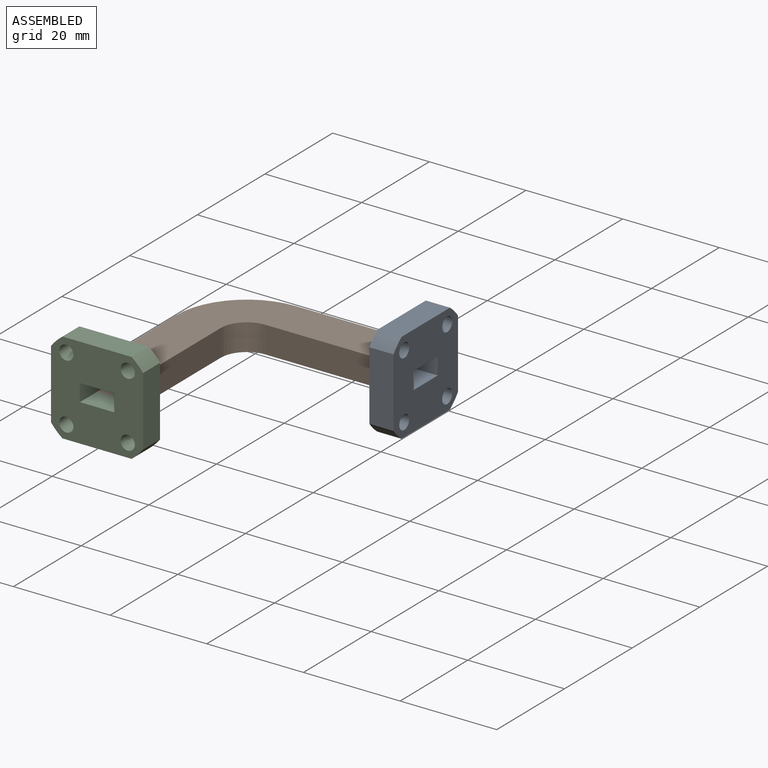
[diagram: assembled view]
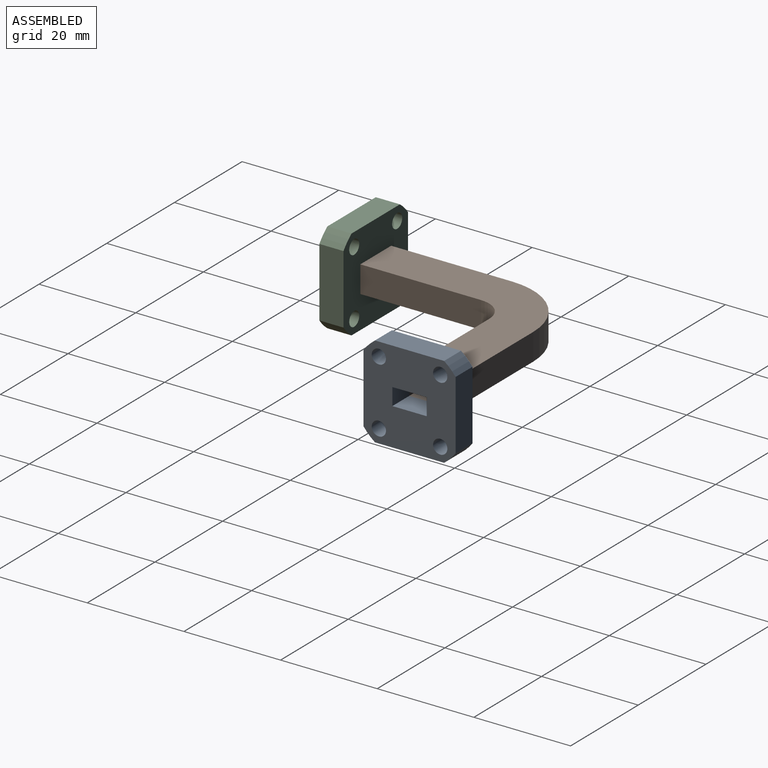
[diagram: assembled view, second angle]
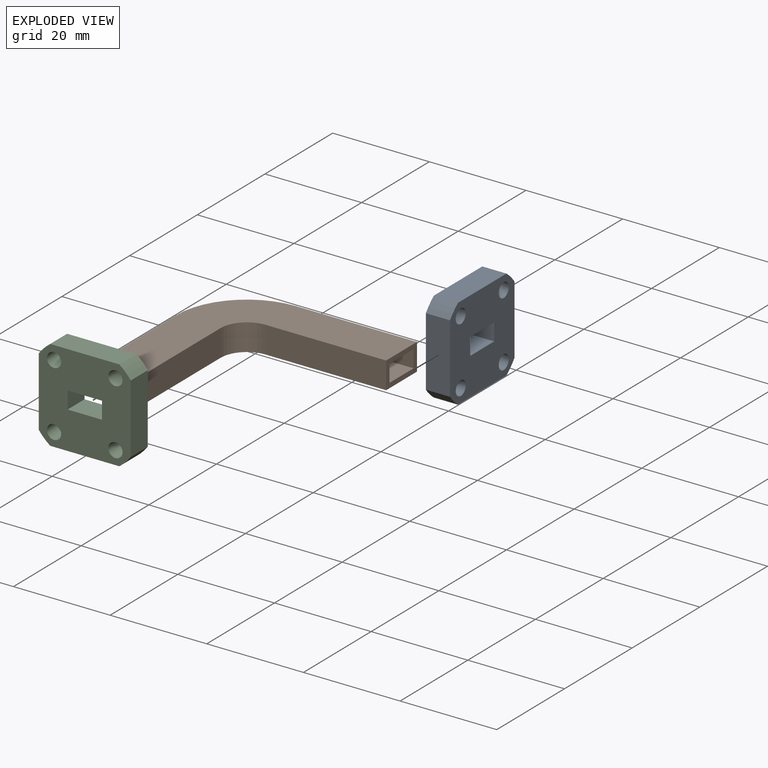
[diagram: exploded view]
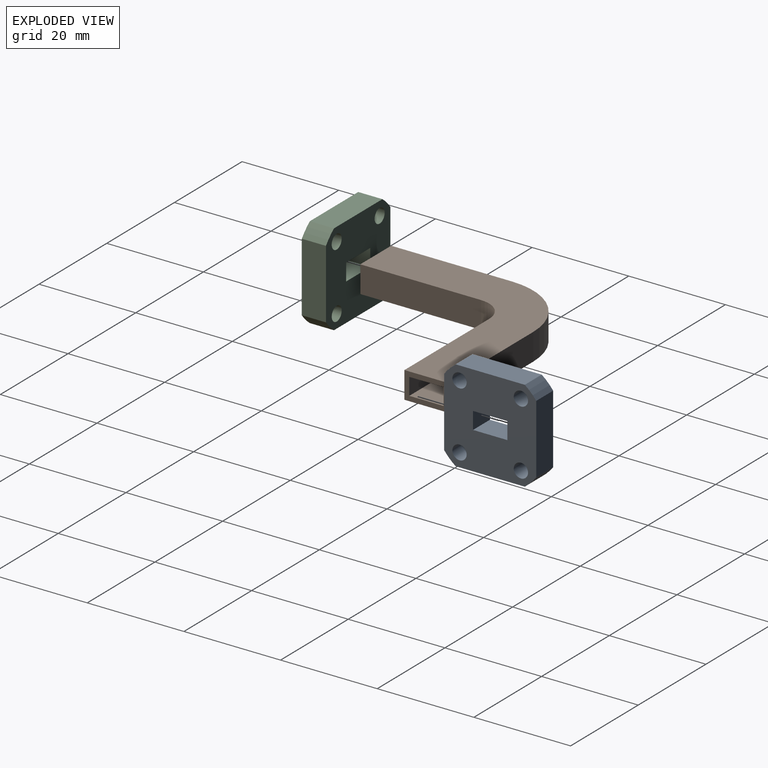
[diagram: exploded view, second angle]
ASSEMBLY  parts=3 mates=6
PART A: 18 faces, bbox 19.1x5x19.1 mm
  f0: plane 14.31x5mm, normal (0,0,-1), area 71.5mm2, adj f1,f15,f16,f17
  f1: cylinder r=11.91mm len=5mm, axis (0,-1,0), area 16.8mm2, adj f0,f2,f16,f17
  f2: plane 14.31x5mm, normal (1,0,0), area 71.5mm2, adj f1,f3,f16,f17
  f3: cylinder r=11.91mm len=5mm, axis (0,-1,0), area 16.8mm2, adj f2,f4,f16,f17
  f4: plane 14.31x5mm, normal (0,0,1), area 71.5mm2, adj f3,f5,f16,f17
  f5: cylinder r=11.91mm len=5mm, axis (0,-1,0), area 16.8mm2, adj f4,f6,f16,f17
  f6: plane 14.31x5mm, normal (-1,0,0), area 71.5mm2, adj f5,f15,f16,f17
  f7: plane 5x3.56mm, normal (-1,0,0), area 17.8mm2, adj f8,f14,f16,f17
  f8: plane 7.11x5mm, normal (0,0,1), area 35.6mm2, adj f7,f9,f16,f17
  f9: plane 5x3.56mm, normal (1,0,0), area 17.8mm2, adj f8,f14,f16,f17
  f10: cylinder r=1.47mm len=5mm, axis (0,-1,0), area 46.3mm2, adj f16,f17
  f11: cylinder r=1.47mm len=5mm, axis (0,-1,0), area 46.3mm2, adj f16,f17
  f12: cylinder r=1.47mm len=5mm, axis (0,-1,0), area 46.3mm2, adj f16,f17
  f13: cylinder r=1.47mm len=5mm, axis (0,-1,0), area 46.3mm2, adj f16,f17
  f14: plane 7.11x5mm, normal (0,0,-1), area 35.6mm2, adj f7,f9,f16,f17
  f15: cylinder r=11.91mm len=5mm, axis (0,-1,0), area 16.8mm2, adj f0,f6,f16,f17
  f16: plane 19.05x19.05mm, normal (0,1,0), area 300.1mm2, adj f0,f1,f2,f3,f4,f5,f6,f7
  f17: plane 19.05x19.05mm, normal (0,-1,0), area 300.1mm2, adj f0,f1,f2,f3,f4,f5,f6,f7
PART B: 18 faces, bbox 39.6x39.6x5.6 mm
  f0: plane 25x3.56mm, normal (1,0,0), area 88.9mm2, adj f2,f5,f7,f8
  f1: plane 25x3.56mm, normal (-1,0,0), area 88.9mm2, adj f3,f5,f7,f8
  f2: cylinder r=13.56mm len=13.56mm, axis (0,0,-1), area 75.7mm2, adj f0,f4,f5,f7
  f3: cylinder r=6.44mm len=6.44mm, axis (0,0,-1), area 36mm2, adj f1,f5,f6,f7
  f4: plane 25x3.56mm, normal (0,-1,0), area 88.9mm2, adj f2,f5,f7,f9
  f5: plane 38.56x38.56mm, normal (0,0,1), area 467.3mm2, adj f0,f1,f2,f3,f4,f6,f8,f9
  f6: plane 25x3.56mm, normal (0,1,0), area 88.9mm2, adj f3,f5,f7,f9
  f7: plane 38.56x38.56mm, normal (0,0,-1), area 467.3mm2, adj f0,f1,f2,f3,f4,f6,f8,f9
  f8: plane 9.11x5.56mm, normal (0,-1,0), area 25.3mm2, adj f0,f1,f5,f7,f10,f11,f12,f13
  f9: plane 9.11x5.56mm, normal (1,0,0), area 25.3mm2, adj f4,f5,f6,f7,f10,f12,f16,f17
  f10: plane 39.56x39.56mm, normal (0,0,1), area 598.7mm2, adj f8,f9,f11,f13,f14,f15,f16,f17
  f11: plane 25x5.56mm, normal (1,0,0), area 138.9mm2, adj f8,f10,f12,f14
  f12: plane 39.56x39.56mm, normal (0,0,-1), area 598.7mm2, adj f8,f9,f11,f13,f14,f15,f16,f17
  f13: plane 25x5.56mm, normal (-1,0,0), area 138.9mm2, adj f8,f10,f12,f15
  f14: cylinder r=5.44mm len=5.56mm, axis (0,0,-1), area 47.5mm2, adj f10,f11,f12,f16
  f15: cylinder r=14.56mm len=14.56mm, axis (0,0,-1), area 127mm2, adj f10,f12,f13,f17
  f16: plane 25x5.56mm, normal (0,-1,0), area 138.9mm2, adj f9,f10,f12,f14
  f17: plane 25x5.56mm, normal (0,1,0), area 138.9mm2, adj f9,f10,f12,f15
PART C: same geometry as A
PLACE A rot(axis=(0,0,-1),90deg) t=(36.22,11.53,-1.46)mm
PLACE B t=(1.22,-23.47,-1.46)mm
PLACE C t=(1.22,-28.47,-1.46)mm
MATE planar B.f8 <-> C.f15  axis (0,-1,0) through (-2.34,-23.47,-3.24)mm
MATE planar B.f6 <-> A.f7  axis (0,1,0) through (36.22,7.97,-1.46)mm
MATE planar B.f5 <-> A.f8  axis (0,0,1) through (36.22,11.53,-3.24)mm
MATE planar B.f0 <-> C.f9  axis (1,0,0) through (-2.34,-10.97,-1.46)mm
MATE planar A.f17 <-> B.f9  axis (-1,0,0) through (36.22,11.53,0.32)mm
MATE planar B.f5 <-> C.f8  axis (0,0,1) through (4.78,1.53,-3.24)mm
